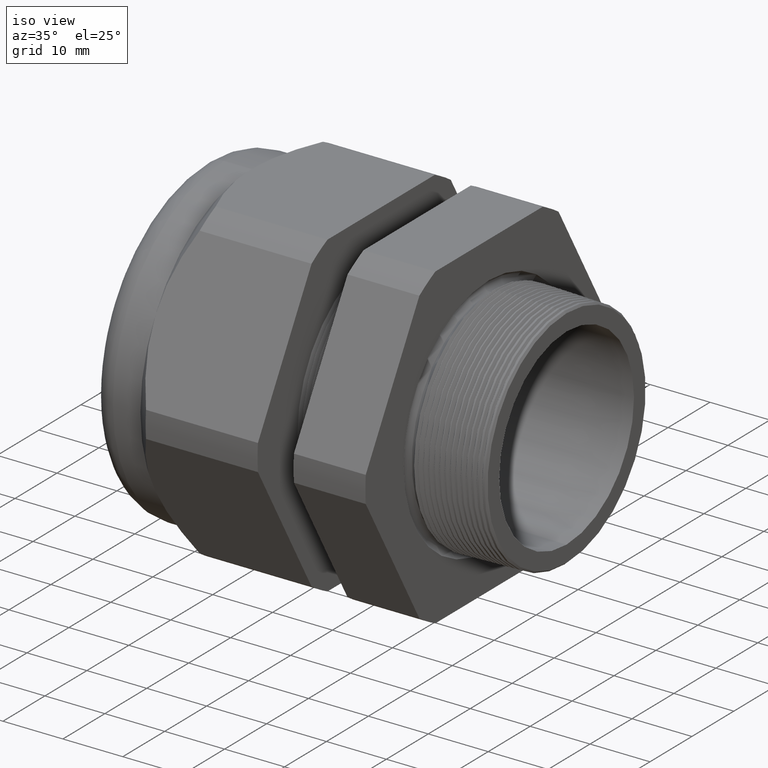
[diagram: clean part render]
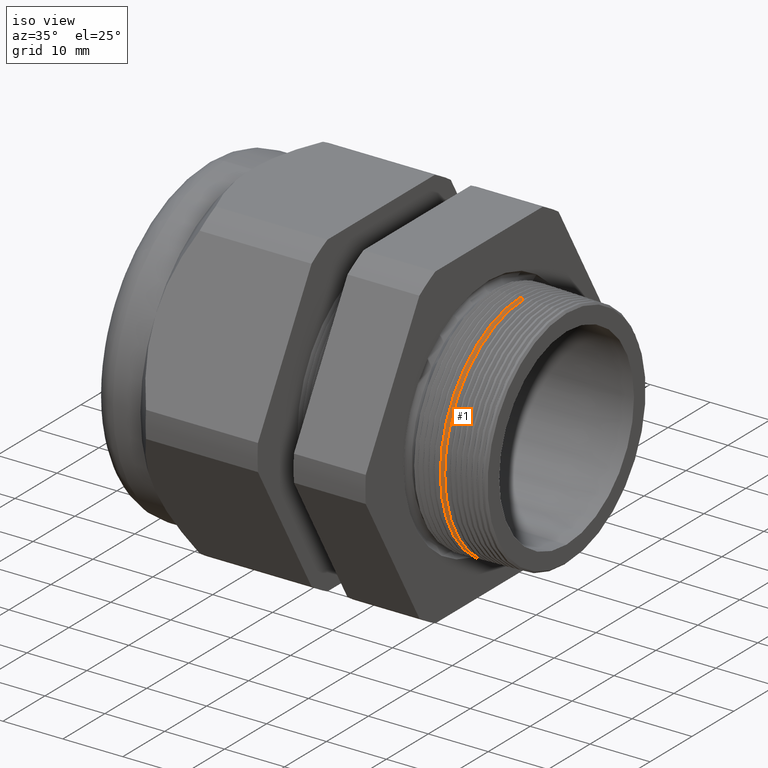
[diagram: same view with one face highlighted and labeled with its STEP entity id]
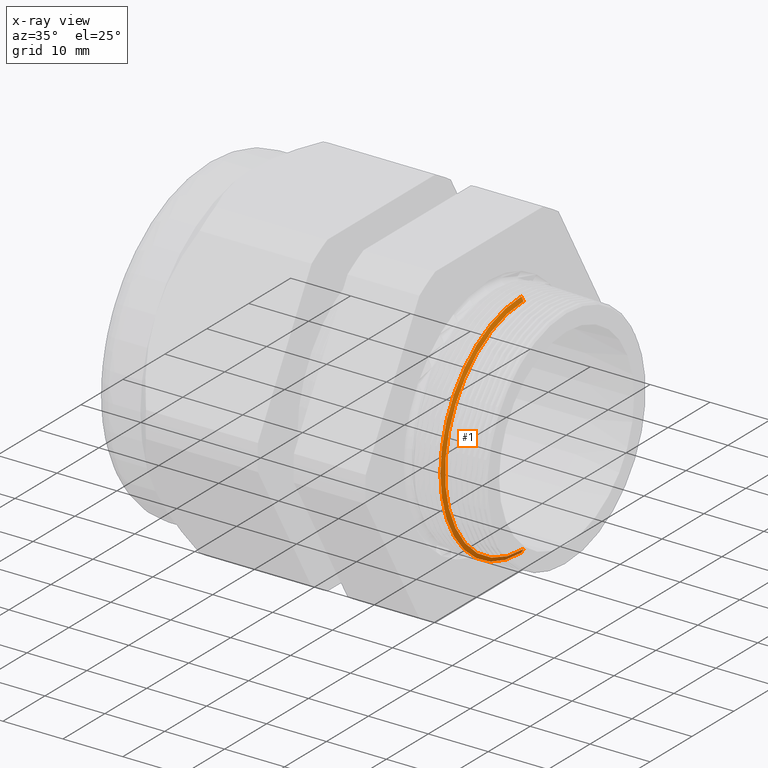
[diagram: x-ray of the same camera — body ghosted, the highlighted face saturated]
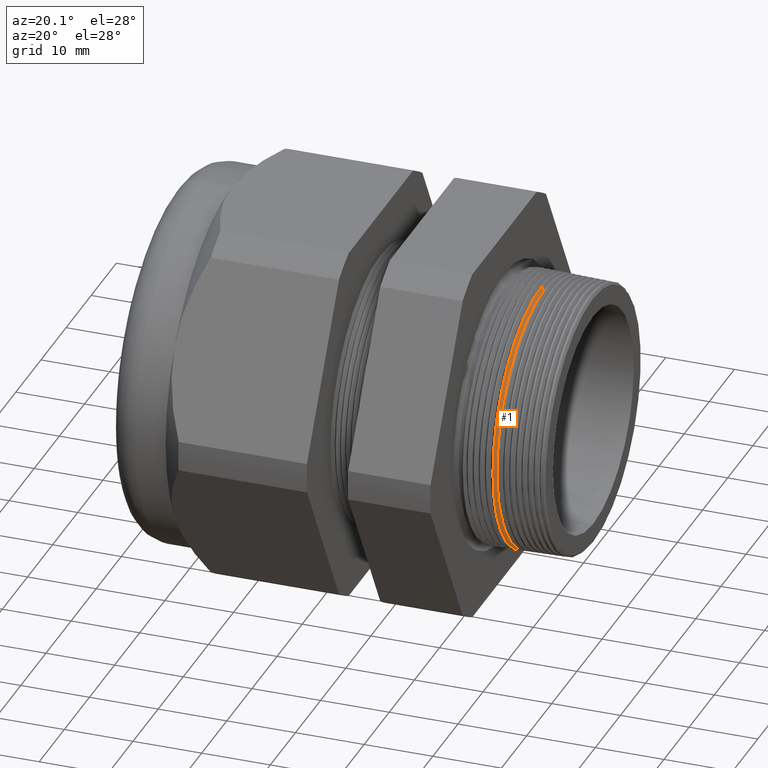
[diagram: same view with one face highlighted and labeled with its STEP entity id]
A machine part, iso view. The second image highlights one B-rep face of the part: STEP entity #1.
The next image is the same camera in x-ray: the body ghosted, the highlighted face saturated — about 4% of this face is hidden behind the body in this view.
A second angle (auxiliary view) of the same face is appended — the face is thin or edge-on in the first view.
In plain terms, the highlighted conical surface has half-angle 61.5 deg.
Its self-contained STEP definition (entity closure, byte-faithful):
#1 = ADVANCED_FACE ( 'NONE', ( #574 ), #572, .T. ) ;
#201 = EDGE_CURVE ( 'NONE', #271, #274, #908, .T. ) ;
#271 = VERTEX_POINT ( 'NONE', #1090 ) ;
#274 = VERTEX_POINT ( 'NONE', #1084 ) ;
#275 = EDGE_CURVE ( 'NONE', #344, #274, #1082, .T. ) ;
#344 = VERTEX_POINT ( 'NONE', #1210 ) ;
#345 = VERTEX_POINT ( 'NONE', #1209 ) ;
#569 = DIRECTION ( 'NONE',  ( 0.0000000000000000000, 0.0000000000000000000, 1.000000000000000000 ) ) ;
#570 = DIRECTION ( 'NONE',  ( -1.000000000000000000, 0.0000000000000000000, 0.0000000000000000000 ) ) ;
#571 = AXIS2_PLACEMENT_3D ( 'NONE', #573, #570, #569 ) ;
#572 = CONICAL_SURFACE ( 'NONE', #571, 0.7664393454711850900, 1.073377489976501800 ) ;
#573 = CARTESIAN_POINT ( 'NONE',  ( -0.09999999999999996400, 0.0000000000000000000, 0.0000000000000000000 ) ) ;
#574 = FACE_OUTER_BOUND ( 'NONE', #5544, .T. ) ;
#902 = CARTESIAN_POINT ( 'NONE',  ( -0.09697120011612868400, 0.0000000000000000000, 0.0000000000000000000 ) ) ;
#903 = AXIS2_PLACEMENT_3D ( 'NONE', #902, #962, #961 ) ;
#908 = CIRCLE ( 'NONE', #903, 0.7608609900254494900 ) ;
#961 = DIRECTION ( 'NONE',  ( 0.0000000000000000000, 0.0000000000000000000, 1.000000000000000000 ) ) ;
#962 = DIRECTION ( 'NONE',  ( 1.000000000000000000, 0.0000000000000000000, 0.0000000000000000000 ) ) ;
#1079 = DIRECTION ( 'NONE',  ( -0.4771587602596179000, 1.076240564057388100E-016, -0.8788171126619600500 ) ) ;
#1080 = VECTOR ( 'NONE', #1079, 39.37007874015748900 ) ;
#1081 = CARTESIAN_POINT ( 'NONE',  ( -0.09999999999999996400, 9.386174911718792200E-017, -0.7664393454711850900 ) ) ;
#1082 = LINE ( 'NONE', #1081, #1080 ) ;
#1084 = CARTESIAN_POINT ( 'NONE',  ( -0.09697120011612868400, 9.318848029162810300E-017, -0.7608609900254494900 ) ) ;
#1090 = CARTESIAN_POINT ( 'NONE',  ( -0.09697120011612868400, 0.0000000000000000000, 0.7608609900254494900 ) ) ;
#1209 = CARTESIAN_POINT ( 'NONE',  ( -0.08347073567907520300, 0.0000000000000000000, 0.7359962276773550600 ) ) ;
#1210 = CARTESIAN_POINT ( 'NONE',  ( -0.08347073567907520300, 9.165607002201761300E-017, -0.7359962276773550600 ) ) ;
#1972 = DIRECTION ( 'NONE',  ( -0.4771587602596179000, 0.0000000000000000000, 0.8788171126619600500 ) ) ;
#1973 = VECTOR ( 'NONE', #1972, 39.37007874015748900 ) ;
#1974 = CARTESIAN_POINT ( 'NONE',  ( -0.09999999999999996400, 0.0000000000000000000, 0.7664393454711850900 ) ) ;
#1975 = LINE ( 'NONE', #1974, #1973 ) ;
#4100 = DIRECTION ( 'NONE',  ( 0.0000000000000000000, 0.0000000000000000000, -1.000000000000000000 ) ) ;
#4101 = DIRECTION ( 'NONE',  ( 1.000000000000000000, 0.0000000000000000000, 0.0000000000000000000 ) ) ;
#4102 = AXIS2_PLACEMENT_3D ( 'NONE', #4107, #4101, #4100 ) ;
#4103 = CIRCLE ( 'NONE', #4102, 0.7359962276773550600 ) ;
#4107 = CARTESIAN_POINT ( 'NONE',  ( -0.08347073567907520300, 0.0000000000000000000, 0.0000000000000000000 ) ) ;
#4361 = EDGE_CURVE ( 'NONE', #345, #271, #1975, .T. ) ;
#5541 = ORIENTED_EDGE ( 'NONE', *, *, #201, .T. ) ;
#5542 = ORIENTED_EDGE ( 'NONE', *, *, #4361, .T. ) ;
#5543 = EDGE_CURVE ( 'NONE', #345, #344, #4103, .T. ) ;
#5544 = EDGE_LOOP ( 'NONE', ( #5546, #5545, #5542, #5541 ) ) ;
#5545 = ORIENTED_EDGE ( 'NONE', *, *, #5543, .F. ) ;
#5546 = ORIENTED_EDGE ( 'NONE', *, *, #275, .F. ) ;